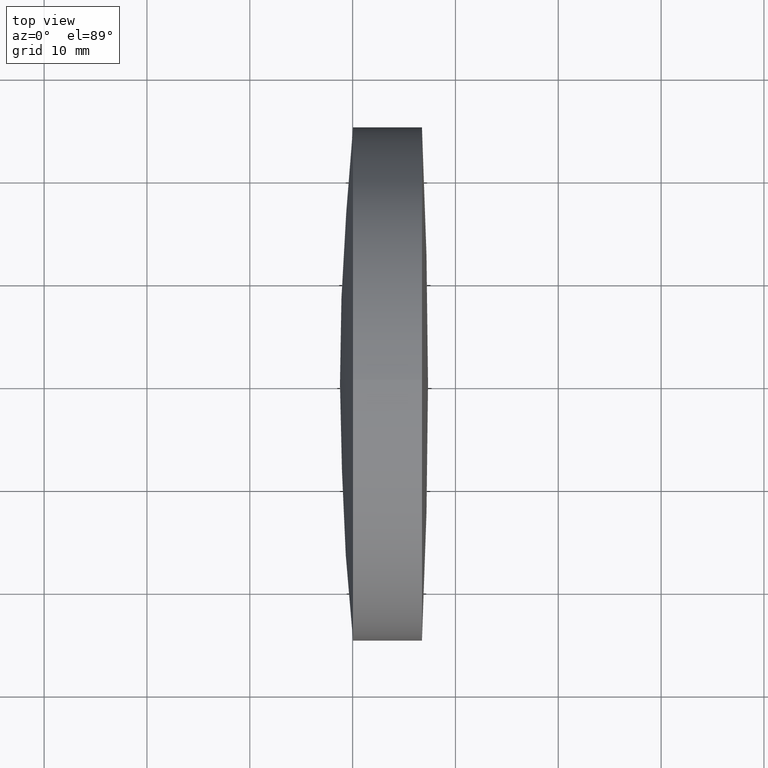
[diagram: clean part render]
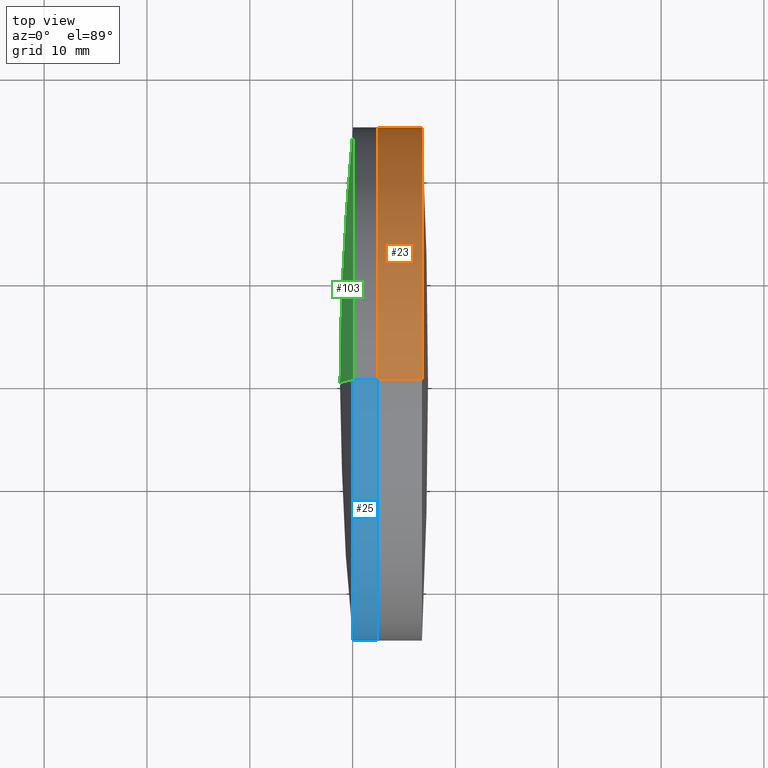
[diagram: same view with three faces highlighted in distinct colors, each labeled with its STEP entity id]
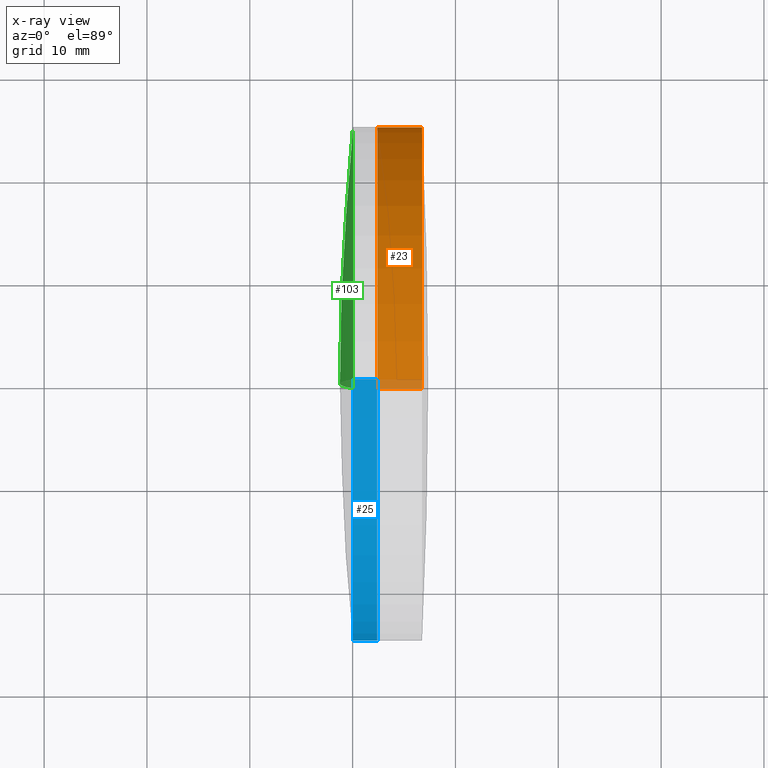
[diagram: x-ray of the same camera — body ghosted, the three highlighted faces saturated]
A machine part, top view with three faces highlighted in distinct colors.
The next image is the same camera in x-ray (body ghosted, the three faces saturated) — at least one of them is partly hidden behind the body in this view.
Their STEP definitions:

[orange] entity #23 — the highlighted cylindrical surface (partial cylindrical patch) has radius 25 mm, axis along (-1, -0, -0).
#1 = EDGE_LOOP ( 'NONE', ( #344, #215, #46, #134 ) ) ;
#13 = VERTEX_POINT ( 'NONE', #330 ) ;
#23 = ADVANCED_FACE ( 'NONE', ( #322 ), #112, .T. ) ;
#27 = VERTEX_POINT ( 'NONE', #272 ) ;
#35 = VECTOR ( 'NONE', #296, 1000.000000000000000 ) ;
#46 = ORIENTED_EDGE ( 'NONE', *, *, #218, .F. ) ;
#58 = CARTESIAN_POINT ( 'NONE',  ( -0.5519199926577972300, 3.061616997868370000E-015, -24.99999999999989300 ) ) ;
#74 = CARTESIAN_POINT ( 'NONE',  ( 262.3933440983366300, 0.0000000000000000000, 0.0000000000000000000 ) ) ;
#83 = DIRECTION ( 'NONE',  ( -1.000000000000000000, -0.0000000000000000000, -0.0000000000000000000 ) ) ;
#111 = VECTOR ( 'NONE', #83, 1000.000000000000000 ) ;
#112 = CYLINDRICAL_SURFACE ( 'NONE', #319, 24.99999999999989300 ) ;
#114 = AXIS2_PLACEMENT_3D ( 'NONE', #74, #287, #318 ) ;
#116 = VERTEX_POINT ( 'NONE', #260 ) ;
#134 = ORIENTED_EDGE ( 'NONE', *, *, #312, .F. ) ;
#138 = VERTEX_POINT ( 'NONE', #321 ) ;
#150 = LINE ( 'NONE', #165, #35 ) ;
#165 = CARTESIAN_POINT ( 'NONE',  ( -0.5519199926577972300, 0.0000000000000000000, 24.99999999999989300 ) ) ;
#184 = DIRECTION ( 'NONE',  ( 0.0000000000000000000, 0.0000000000000000000, 1.000000000000000000 ) ) ;
#198 = LINE ( 'NONE', #58, #111 ) ;
#215 = ORIENTED_EDGE ( 'NONE', *, *, #220, .T. ) ;
#218 = EDGE_CURVE ( 'NONE', #13, #138, #315, .T. ) ;
#220 = EDGE_CURVE ( 'NONE', #116, #138, #198, .T. ) ;
#228 = CARTESIAN_POINT ( 'NONE',  ( 266.7418359624271600, 0.0000000000000000000, 0.0000000000000000000 ) ) ;
#243 = CIRCLE ( 'NONE', #339, 24.99999999999968000 ) ;
#260 = CARTESIAN_POINT ( 'NONE',  ( 266.7418359624271600, 3.061616997868357000E-015, -24.99999999999968000 ) ) ;
#272 = CARTESIAN_POINT ( 'NONE',  ( 266.7418359624271600, 0.0000000000000000000, 24.99999999999968000 ) ) ;
#287 = DIRECTION ( 'NONE',  ( -1.000000000000000000, -0.0000000000000000000, -0.0000000000000000000 ) ) ;
#291 = EDGE_CURVE ( 'NONE', #27, #116, #243, .T. ) ;
#296 = DIRECTION ( 'NONE',  ( -1.000000000000000000, -0.0000000000000000000, -0.0000000000000000000 ) ) ;
#305 = DIRECTION ( 'NONE',  ( -1.000000000000000000, -0.0000000000000000000, -0.0000000000000000000 ) ) ;
#312 = EDGE_CURVE ( 'NONE', #27, #13, #150, .T. ) ;
#315 = CIRCLE ( 'NONE', #114, 25.00000000000011000 ) ;
#318 = DIRECTION ( 'NONE',  ( 0.0000000000000000000, 0.0000000000000000000, 1.000000000000000000 ) ) ;
#319 = AXIS2_PLACEMENT_3D ( 'NONE', #324, #343, #184 ) ;
#321 = CARTESIAN_POINT ( 'NONE',  ( 262.3933440983366300, 3.061616997868401600E-015, -24.99999999999989700 ) ) ;
#322 = FACE_OUTER_BOUND ( 'NONE', #1, .T. ) ;
#324 = CARTESIAN_POINT ( 'NONE',  ( -0.5519199926577972300, 0.0000000000000000000, 0.0000000000000000000 ) ) ;
#330 = CARTESIAN_POINT ( 'NONE',  ( 262.3933440983366300, 0.0000000000000000000, 25.00000000000015300 ) ) ;
#331 = DIRECTION ( 'NONE',  ( 0.0000000000000000000, 0.0000000000000000000, 1.000000000000000000 ) ) ;
#339 = AXIS2_PLACEMENT_3D ( 'NONE', #228, #305, #331 ) ;
#343 = DIRECTION ( 'NONE',  ( -1.000000000000000000, -0.0000000000000000000, -0.0000000000000000000 ) ) ;
#344 = ORIENTED_EDGE ( 'NONE', *, *, #291, .T. ) ;

[blue] entity #25 — the highlighted cylindrical surface (partial cylindrical patch) has radius 25 mm, axis along (-1, -0, -0).
#7 = ORIENTED_EDGE ( 'NONE', *, *, #300, .F. ) ;
#8 = DIRECTION ( 'NONE',  ( 0.0000000000000000000, 0.0000000000000000000, 1.000000000000000000 ) ) ;
#15 = VERTEX_POINT ( 'NONE', #214 ) ;
#19 = CYLINDRICAL_SURFACE ( 'NONE', #53, 25.00000000000008500 ) ;
#25 = ADVANCED_FACE ( 'NONE', ( #294 ), #19, .T. ) ;
#52 = VERTEX_POINT ( 'NONE', #290 ) ;
#53 = AXIS2_PLACEMENT_3D ( 'NONE', #258, #314, #257 ) ;
#62 = VECTOR ( 'NONE', #157, 1000.000000000000000 ) ;
#96 = ORIENTED_EDGE ( 'NONE', *, *, #252, .T. ) ;
#109 = VECTOR ( 'NONE', #337, 1000.000000000000000 ) ;
#120 = CIRCLE ( 'NONE', #201, 25.00000000000008500 ) ;
#123 = AXIS2_PLACEMENT_3D ( 'NONE', #255, #174, #8 ) ;
#157 = DIRECTION ( 'NONE',  ( -1.000000000000000000, -0.0000000000000000000, -0.0000000000000000000 ) ) ;
#163 = ORIENTED_EDGE ( 'NONE', *, *, #333, .F. ) ;
#167 = DIRECTION ( 'NONE',  ( 0.0000000000000000000, 0.0000000000000000000, 1.000000000000000000 ) ) ;
#174 = DIRECTION ( 'NONE',  ( -1.000000000000000000, -0.0000000000000000000, -0.0000000000000000000 ) ) ;
#183 = LINE ( 'NONE', #299, #62 ) ;
#201 = AXIS2_PLACEMENT_3D ( 'NONE', #244, #270, #167 ) ;
#206 = VERTEX_POINT ( 'NONE', #292 ) ;
#214 = CARTESIAN_POINT ( 'NONE',  ( 260.0409607472518000, 0.0000000000000000000, 25.00000000000009900 ) ) ;
#221 = CARTESIAN_POINT ( 'NONE',  ( 262.3933440983366300, 0.0000000000000000000, 25.00000000000008500 ) ) ;
#226 = CIRCLE ( 'NONE', #123, 25.00000000000008900 ) ;
#237 = EDGE_CURVE ( 'NONE', #206, #326, #120, .T. ) ;
#244 = CARTESIAN_POINT ( 'NONE',  ( 262.3933440983366300, 0.0000000000000000000, 0.0000000000000000000 ) ) ;
#252 = EDGE_CURVE ( 'NONE', #326, #15, #183, .T. ) ;
#255 = CARTESIAN_POINT ( 'NONE',  ( 260.0409607472518000, 0.0000000000000000000, 0.0000000000000000000 ) ) ;
#256 = EDGE_LOOP ( 'NONE', ( #163, #264, #96, #7 ) ) ;
#257 = DIRECTION ( 'NONE',  ( 0.0000000000000000000, 0.0000000000000000000, 1.000000000000000000 ) ) ;
#258 = CARTESIAN_POINT ( 'NONE',  ( 124.5233095260452400, 0.0000000000000000000, 0.0000000000000000000 ) ) ;
#264 = ORIENTED_EDGE ( 'NONE', *, *, #237, .T. ) ;
#270 = DIRECTION ( 'NONE',  ( -1.000000000000000000, -0.0000000000000000000, -0.0000000000000000000 ) ) ;
#277 = LINE ( 'NONE', #301, #109 ) ;
#290 = CARTESIAN_POINT ( 'NONE',  ( 260.0409607472518000, 3.061616997868394900E-015, -25.00000000000028100 ) ) ;
#292 = CARTESIAN_POINT ( 'NONE',  ( 262.3933440983366300, 3.061616997868393700E-015, -25.00000000000008500 ) ) ;
#294 = FACE_OUTER_BOUND ( 'NONE', #256, .T. ) ;
#299 = CARTESIAN_POINT ( 'NONE',  ( 124.5233095260452400, 0.0000000000000000000, 25.00000000000008500 ) ) ;
#300 = EDGE_CURVE ( 'NONE', #52, #15, #226, .T. ) ;
#301 = CARTESIAN_POINT ( 'NONE',  ( 124.5233095260452400, 3.061616997868393700E-015, -25.00000000000008500 ) ) ;
#314 = DIRECTION ( 'NONE',  ( -1.000000000000000000, -0.0000000000000000000, -0.0000000000000000000 ) ) ;
#326 = VERTEX_POINT ( 'NONE', #221 ) ;
#333 = EDGE_CURVE ( 'NONE', #206, #52, #277, .T. ) ;
#337 = DIRECTION ( 'NONE',  ( -1.000000000000000000, -0.0000000000000000000, -0.0000000000000000000 ) ) ;

[green] entity #103 — the highlighted spherical surface has radius 246.72 mm.
#5 = DIRECTION ( 'NONE',  ( 0.0000000000000000000, 0.0000000000000000000, 1.000000000000000000 ) ) ;
#15 = VERTEX_POINT ( 'NONE', #214 ) ;
#18 = EDGE_CURVE ( 'NONE', #15, #52, #146, .T. ) ;
#26 = DIRECTION ( 'NONE',  ( 0.0000000000000000000, 0.0000000000000000000, 1.000000000000000000 ) ) ;
#28 = FACE_OUTER_BOUND ( 'NONE', #233, .T. ) ;
#47 = CARTESIAN_POINT ( 'NONE',  ( 260.0409607472518000, 0.0000000000000000000, 0.0000000000000000000 ) ) ;
#52 = VERTEX_POINT ( 'NONE', #290 ) ;
#65 = DIRECTION ( 'NONE',  ( -0.0000000000000000000, 1.000000000000000000, 1.224646799147353200E-016 ) ) ;
#66 = DIRECTION ( 'NONE',  ( 0.0000000000000000000, -1.000000000000000000, 0.0000000000000000000 ) ) ;
#70 = AXIS2_PLACEMENT_3D ( 'NONE', #197, #282, #5 ) ;
#87 = CARTESIAN_POINT ( 'NONE',  ( 505.4910746197044200, 0.0000000000000000000, -1.842447540899294800E-013 ) ) ;
#95 = CARTESIAN_POINT ( 'NONE',  ( 258.7710746197045100, 0.0000000000000000000, -1.691375111756477200E-013 ) ) ;
#103 = ADVANCED_FACE ( 'NONE', ( #28 ), #240, .T. ) ;
#130 = EDGE_CURVE ( 'NONE', #52, #156, #203, .T. ) ;
#146 = CIRCLE ( 'NONE', #188, 25.00000000000008900 ) ;
#148 = ORIENTED_EDGE ( 'NONE', *, *, #130, .T. ) ;
#156 = VERTEX_POINT ( 'NONE', #95 ) ;
#188 = AXIS2_PLACEMENT_3D ( 'NONE', #47, #239, #26 ) ;
#190 = ORIENTED_EDGE ( 'NONE', *, *, #253, .F. ) ;
#197 = CARTESIAN_POINT ( 'NONE',  ( 505.4910746197044200, 0.0000000000000000000, -1.842447540899294800E-013 ) ) ;
#203 = CIRCLE ( 'NONE', #245, 246.7199999999999700 ) ;
#214 = CARTESIAN_POINT ( 'NONE',  ( 260.0409607472518000, 0.0000000000000000000, 25.00000000000009900 ) ) ;
#227 = CIRCLE ( 'NONE', #308, 246.7199999999999700 ) ;
#233 = EDGE_LOOP ( 'NONE', ( #265, #148, #190 ) ) ;
#239 = DIRECTION ( 'NONE',  ( -1.000000000000000000, -0.0000000000000000000, -0.0000000000000000000 ) ) ;
#240 = SPHERICAL_SURFACE ( 'NONE', #70, 246.7199999999999700 ) ;
#245 = AXIS2_PLACEMENT_3D ( 'NONE', #279, #65, #342 ) ;
#253 = EDGE_CURVE ( 'NONE', #15, #156, #227, .T. ) ;
#265 = ORIENTED_EDGE ( 'NONE', *, *, #18, .T. ) ;
#279 = CARTESIAN_POINT ( 'NONE',  ( 505.4910746197044200, 0.0000000000000000000, -1.842447540899294800E-013 ) ) ;
#282 = DIRECTION ( 'NONE',  ( 0.0000000000000000000, 1.000000000000000000, 0.0000000000000000000 ) ) ;
#290 = CARTESIAN_POINT ( 'NONE',  ( 260.0409607472518000, 3.061616997868394900E-015, -25.00000000000028100 ) ) ;
#302 = DIRECTION ( 'NONE',  ( 0.0000000000000000000, 0.0000000000000000000, -1.000000000000000000 ) ) ;
#308 = AXIS2_PLACEMENT_3D ( 'NONE', #87, #66, #302 ) ;
#342 = DIRECTION ( 'NONE',  ( 0.0000000000000000000, -1.224646799147353000E-016, 1.000000000000000000 ) ) ;